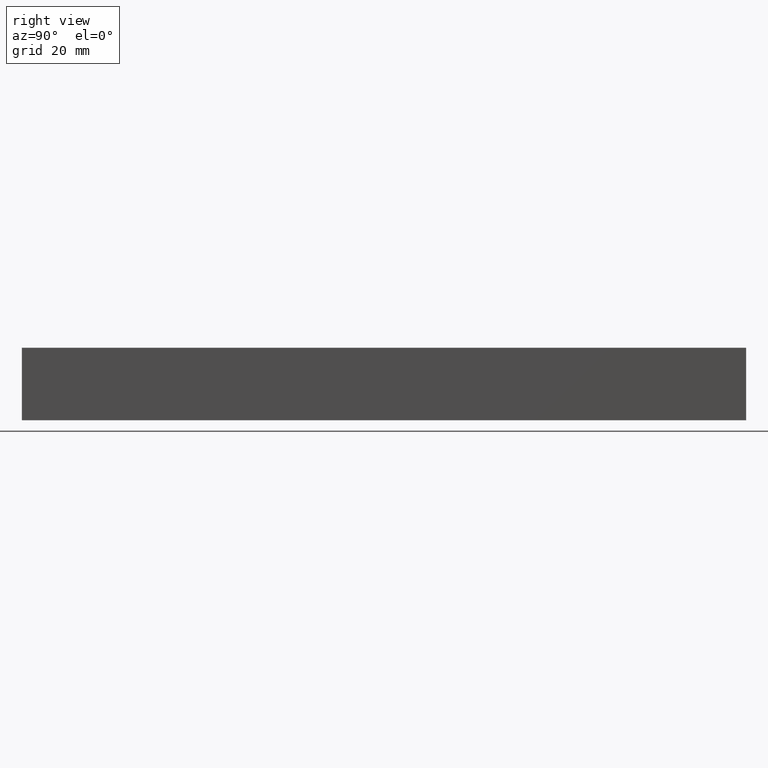
[diagram: clean part render]
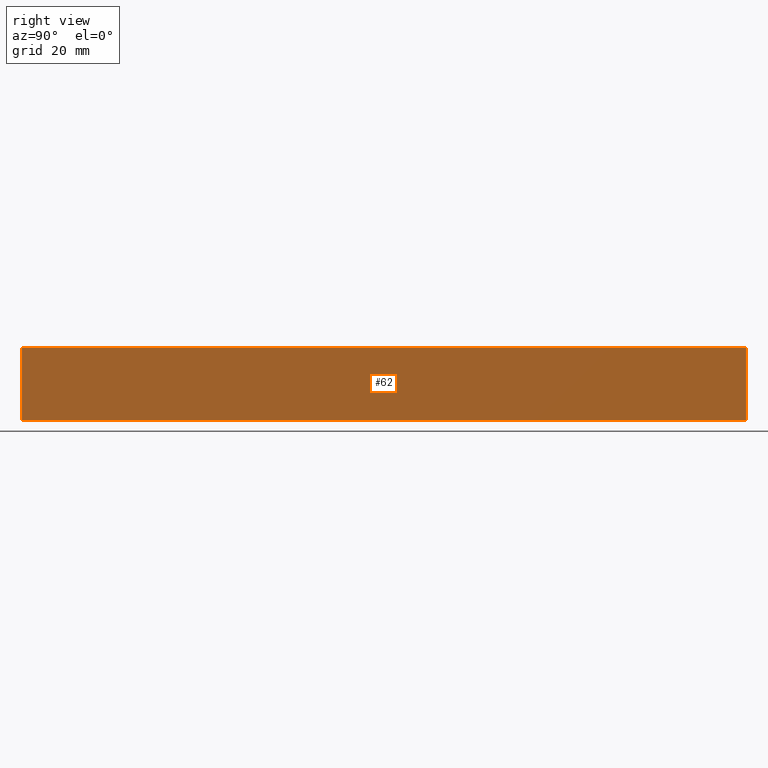
[diagram: same view with one face highlighted and labeled with its STEP entity id]
A machine part, right view. The second image highlights one B-rep face of the part: STEP entity #62.
In plain terms, the highlighted planar face has unit normal (-1, 0, 0).
Its self-contained STEP definition (entity closure, byte-faithful):
#5 = EDGE_CURVE ( 'NONE', #122, #221, #87, .T. ) ;
#10 = DIRECTION ( 'NONE',  ( 0.0000000000000000000, 0.0000000000000000000, -1.000000000000000000 ) ) ;
#21 = DIRECTION ( 'NONE',  ( 0.0000000000000000000, 0.0000000000000000000, -1.000000000000000000 ) ) ;
#29 = EDGE_CURVE ( 'NONE', #32, #140, #201, .T. ) ;
#32 = VERTEX_POINT ( 'NONE', #101 ) ;
#47 = ORIENTED_EDGE ( 'NONE', *, *, #5, .F. ) ;
#50 = VECTOR ( 'NONE', #21, 1000.000000000000000 ) ;
#57 = ORIENTED_EDGE ( 'NONE', *, *, #131, .T. ) ;
#61 = CARTESIAN_POINT ( 'NONE',  ( 20.00000000000000000, 0.0000000000000000000, 20.00000000000000000 ) ) ;
#62 = ADVANCED_FACE ( 'NONE', ( #126 ), #141, .F. ) ;
#64 = CARTESIAN_POINT ( 'NONE',  ( 20.00000000000000000, 0.0000000000000000000, 0.0000000000000000000 ) ) ;
#75 = CARTESIAN_POINT ( 'NONE',  ( 20.00000000000000000, 1000.000000000000000, 20.00000000000000000 ) ) ;
#84 = DIRECTION ( 'NONE',  ( 0.0000000000000000000, -1.000000000000000000, 0.0000000000000000000 ) ) ;
#87 = LINE ( 'NONE', #232, #165 ) ;
#91 = VECTOR ( 'NONE', #10, 1000.000000000000000 ) ;
#93 = LINE ( 'NONE', #61, #50 ) ;
#100 = DIRECTION ( 'NONE',  ( -1.000000000000000000, 0.0000000000000000000, 0.0000000000000000000 ) ) ;
#101 = CARTESIAN_POINT ( 'NONE',  ( 20.00000000000000000, 200.0000000000000000, 20.00000000000000000 ) ) ;
#112 = EDGE_CURVE ( 'NONE', #32, #122, #180, .T. ) ;
#122 = VERTEX_POINT ( 'NONE', #200 ) ;
#126 = FACE_OUTER_BOUND ( 'NONE', #215, .T. ) ;
#128 = AXIS2_PLACEMENT_3D ( 'NONE', #228, #100, #149 ) ;
#131 = EDGE_CURVE ( 'NONE', #140, #221, #93, .T. ) ;
#140 = VERTEX_POINT ( 'NONE', #211 ) ;
#141 = PLANE ( 'NONE',  #128 ) ;
#148 = DIRECTION ( 'NONE',  ( 0.0000000000000000000, -1.000000000000000000, 0.0000000000000000000 ) ) ;
#149 = DIRECTION ( 'NONE',  ( 0.0000000000000000000, 0.0000000000000000000, 1.000000000000000000 ) ) ;
#165 = VECTOR ( 'NONE', #84, 1000.000000000000000 ) ;
#180 = LINE ( 'NONE', #190, #91 ) ;
#190 = CARTESIAN_POINT ( 'NONE',  ( 20.00000000000000000, 200.0000000000000000, 20.00000000000000000 ) ) ;
#200 = CARTESIAN_POINT ( 'NONE',  ( 20.00000000000000000, 200.0000000000000000, 0.0000000000000000000 ) ) ;
#201 = LINE ( 'NONE', #75, #238 ) ;
#211 = CARTESIAN_POINT ( 'NONE',  ( 20.00000000000000000, 0.0000000000000000000, 20.00000000000000000 ) ) ;
#215 = EDGE_LOOP ( 'NONE', ( #57, #47, #230, #234 ) ) ;
#221 = VERTEX_POINT ( 'NONE', #64 ) ;
#228 = CARTESIAN_POINT ( 'NONE',  ( 20.00000000000000000, 1000.000000000000000, 20.00000000000000000 ) ) ;
#230 = ORIENTED_EDGE ( 'NONE', *, *, #112, .F. ) ;
#232 = CARTESIAN_POINT ( 'NONE',  ( 20.00000000000000000, 1000.000000000000000, 0.0000000000000000000 ) ) ;
#234 = ORIENTED_EDGE ( 'NONE', *, *, #29, .T. ) ;
#238 = VECTOR ( 'NONE', #148, 1000.000000000000000 ) ;